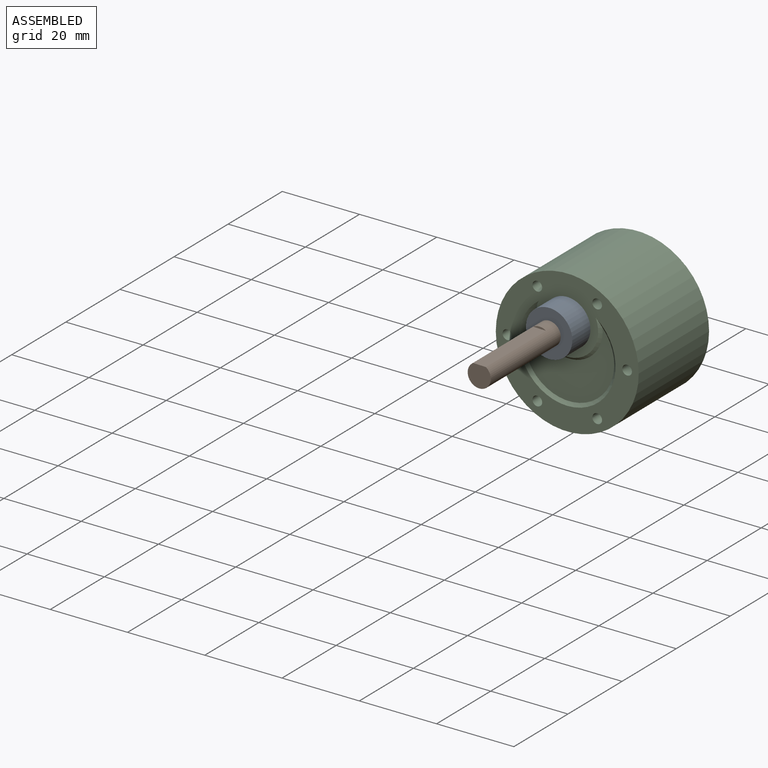
[diagram: assembled view]
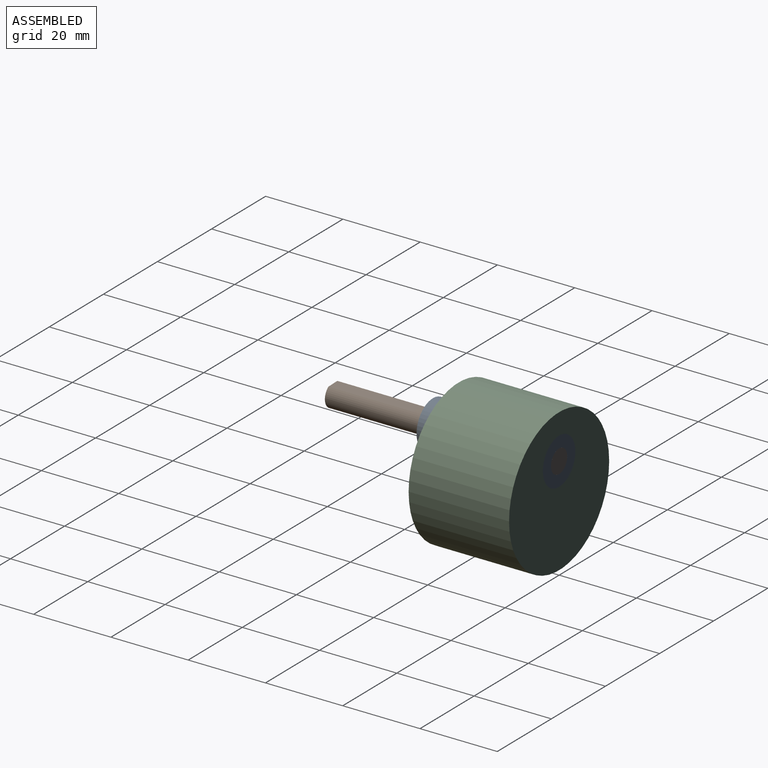
[diagram: assembled view, second angle]
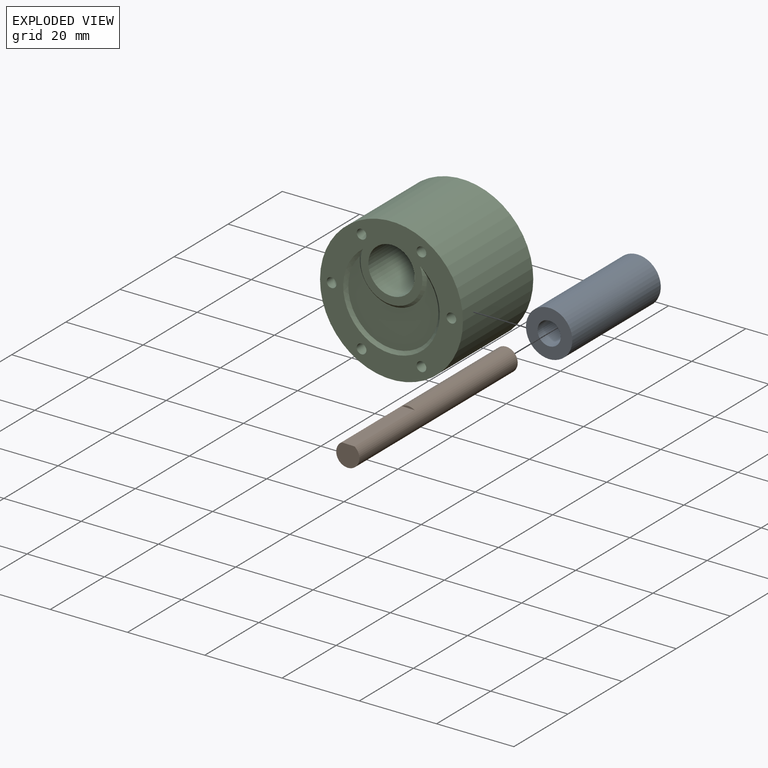
[diagram: exploded view]
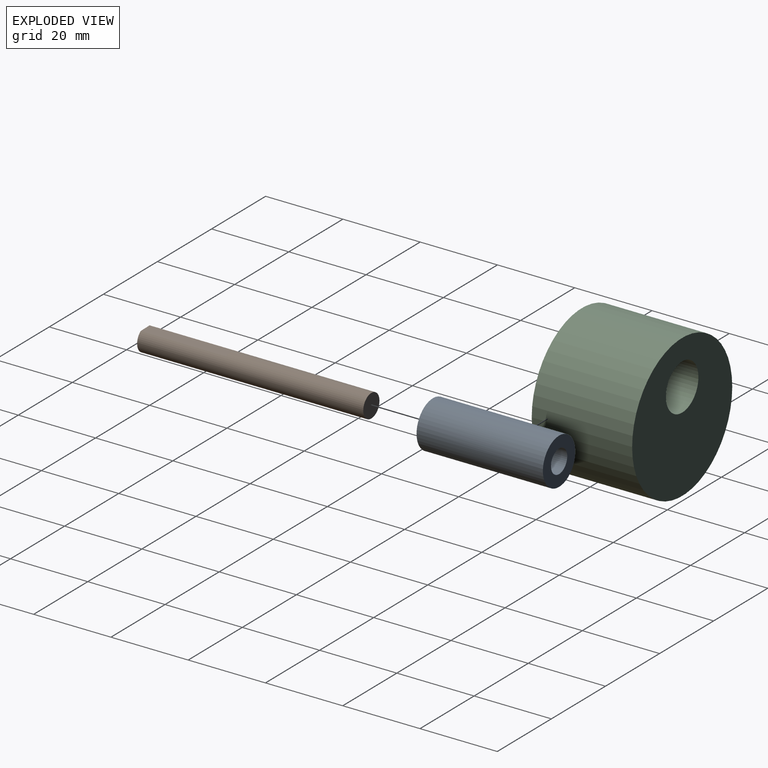
[diagram: exploded view, second angle]
ASSEMBLY  parts=3 mates=2
PART A: 4 faces, bbox 12x32.7x12 mm
  f0: plane 12x12mm, normal (0,-1,0), area 84.8mm2, adj f1,f3
  f1: cylinder r=6mm len=32.7mm, axis (0,1,0), area 1232.8mm2, adj f0,f2
  f2: plane 12x12mm, normal (0,1,0), area 84.8mm2, adj f1,f3
  f3: cylinder r=3mm len=32.7mm, axis (0,1,0), area 616.4mm2, adj f0,f2
PART B: 5 faces, bbox 6x58.5x6 mm
  f0: cylinder r=3mm len=58.53mm, axis (0,1,0), area 1025.1mm2, adj f1,f2,f3,f4
  f1: plane 3.32x0.5mm, normal (0,-1,0), area 1.1mm2, adj f0,f2
  f2: plane 22.23x3.32mm, normal (0,0,1), area 73.7mm2, adj f0,f1,f3
  f3: plane 6x5.5mm, normal (0,-1,0), area 27.1mm2, adj f0,f2
  f4: plane 6x6mm, normal (0,1,0), area 28.3mm2, adj f0
PART C: 19 faces, bbox 37x26x37 mm
  f0: plane 2.5x2.5mm, normal (0,-1,0), area 4.9mm2, adj f7
  f1: plane 2.5x2.5mm, normal (0,-1,0), area 4.9mm2, adj f8
  f2: plane 2.5x2.5mm, normal (0,-1,0), area 4.9mm2, adj f9
  f3: plane 2.5x2.5mm, normal (0,-1,0), area 4.9mm2, adj f10
  f4: plane 2.5x2.5mm, normal (0,-1,0), area 4.9mm2, adj f11
  f5: plane 2.5x2.5mm, normal (0,-1,0), area 4.9mm2, adj f12
  f6: plane 23.33x19.48mm, normal (0,-1,0), area 248.3mm2, adj f13,f14
  f7: cylinder r=1.25mm len=3.5mm, axis (0,-1,0), area 27.5mm2, adj f0,f15
  f8: cylinder r=1.25mm len=3.5mm, axis (0,-1,0), area 27.5mm2, adj f1,f15
  f9: cylinder r=1.25mm len=3.5mm, axis (0,-1,0), area 27.5mm2, adj f2,f15
  f10: cylinder r=1.25mm len=3.5mm, axis (0,-1,0), area 27.5mm2, adj f3,f15
  f11: cylinder r=1.25mm len=3.5mm, axis (0,-1,0), area 27.5mm2, adj f4,f15
  f12: cylinder r=1.25mm len=3.5mm, axis (0,-1,0), area 27.5mm2, adj f5,f15
  f13: cone r=12.5mm half-angle=50deg, axis (0,-1,0), area 63.4mm2, adj f6,f14,f15
  f14: cone r=8mm half-angle=45deg, axis (0,1,0), area 30mm2, adj f6,f13,f15
  f15: plane 37x37mm, normal (0,-1,0), area 614.7mm2, adj f7,f8,f9,f10,f11,f12,f13,f14
  f16: cylinder r=18.5mm len=37mm, axis (0,1,0), area 3022.2mm2, adj f15,f17
  f17: plane 37x37mm, normal (0,1,0), area 962.1mm2, adj f16,f18
  f18: cylinder r=6mm len=26mm, axis (0,1,0), area 980.2mm2, adj f15,f17
PLACE A t=(0,0,0.82)mm
PLACE B rot(axis=(0,1,0),1.5deg) t=(-0.18,0,0.83)mm
PLACE C t=(0,0,0.82)mm
MATE revolute B.f0 <-> A.f1  axis (0,1,0) through (0,0,7.82)mm
MATE fastened C.f14 <-> A.f1  axis (0,1,0) through (0,0,7.82)mm
